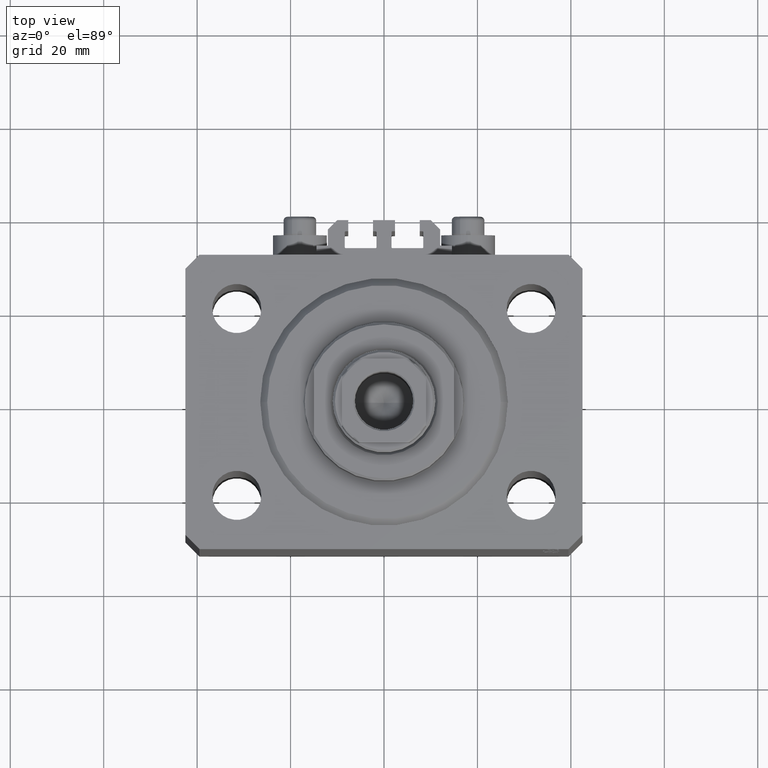
[diagram: clean part render]
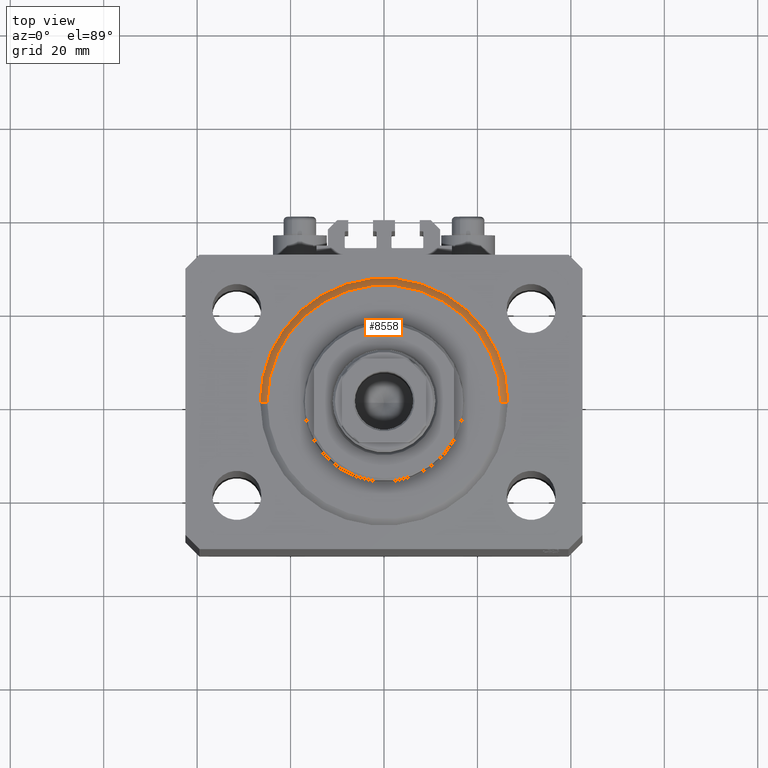
[diagram: same view with one face highlighted and labeled with its STEP entity id]
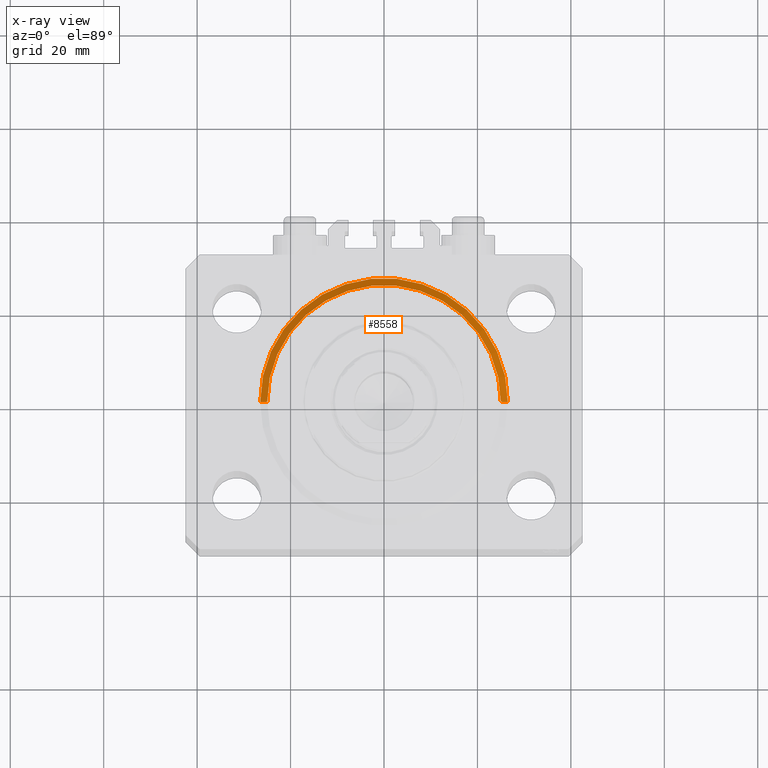
[diagram: x-ray of the same camera — body ghosted, the highlighted face saturated]
A machine part, top view. The second image highlights one B-rep face of the part: STEP entity #8558.
The next image is the same camera in x-ray: the body ghosted, the highlighted face saturated — about 0% of this face is hidden behind the body in this view.
In plain terms, the highlighted conical surface has half-angle 45 deg.
Its self-contained STEP definition (entity closure, byte-faithful):
#3386 = DIRECTION ( 'NONE',  ( 1.000000000000000000, 0.000000000000000000, 0.000000000000000000 ) ) ;
#6912 = CARTESIAN_POINT ( 'NONE',  ( 24.99999999999998224, 0.000000000000000000, 0.000000000000000000 ) ) ;
#7739 = CARTESIAN_POINT ( 'NONE',  ( 26.50000000000000355, 0.000000000000000000, 1.500000000000018652 ) ) ;
#8211 = LINE ( 'NONE', #7739, #44313 ) ;
#8558 = ADVANCED_FACE ( 'NONE', ( #14595 ), #10097, .T. ) ;
#9539 = DIRECTION ( 'NONE',  ( -0.000000000000000000, -0.000000000000000000, -1.000000000000000000 ) ) ;
#10097 = CONICAL_SURFACE ( 'NONE', #31476, 26.50000000000000355, 0.7853981633974495002 ) ;
#10298 = CARTESIAN_POINT ( 'NONE',  ( 0.000000000000000000, 0.000000000000000000, 1.500000000000018652 ) ) ;
#10592 = VERTEX_POINT ( 'NONE', #17755 ) ;
#11850 = DIRECTION ( 'NONE',  ( -0.7071067811865483499, 8.659560562354942719E-17, 0.7071067811865466846 ) ) ;
#14595 = FACE_OUTER_BOUND ( 'NONE', #36623, .T. ) ;
#14981 = VERTEX_POINT ( 'NONE', #28969 ) ;
#17710 = VERTEX_POINT ( 'NONE', #34410 ) ;
#17755 = CARTESIAN_POINT ( 'NONE',  ( -26.50000000000000355, 0.000000000000000000, 1.500000000000018652 ) ) ;
#18171 = ORIENTED_EDGE ( 'NONE', *, *, #45099, .F. ) ;
#19384 = AXIS2_PLACEMENT_3D ( 'NONE', #42255, #9539, #35075 ) ;
#22422 = CIRCLE ( 'NONE', #19384, 24.99999999999998224 ) ;
#23674 = EDGE_CURVE ( 'NONE', #14981, #10592, #28157, .T. ) ;
#25667 = CARTESIAN_POINT ( 'NONE',  ( 0.000000000000000000, 0.000000000000000000, 1.500000000000018652 ) ) ;
#27539 = ORIENTED_EDGE ( 'NONE', *, *, #45615, .T. ) ;
#27762 = VECTOR ( 'NONE', #11850, 1000.000000000000000 ) ;
#28157 = CIRCLE ( 'NONE', #31224, 26.50000000000000355 ) ;
#28969 = CARTESIAN_POINT ( 'NONE',  ( 26.50000000000000355, 3.245314017740486554E-15, 1.500000000000018652 ) ) ;
#29531 = VERTEX_POINT ( 'NONE', #6912 ) ;
#29688 = DIRECTION ( 'NONE',  ( 0.7071067811865483499, 0.000000000000000000, 0.7071067811865466846 ) ) ;
#31224 = AXIS2_PLACEMENT_3D ( 'NONE', #25667, #37358, #47150 ) ;
#31476 = AXIS2_PLACEMENT_3D ( 'NONE', #10298, #39434, #3386 ) ;
#34410 = CARTESIAN_POINT ( 'NONE',  ( -24.99999999999998224, 3.153465507804433615E-15, 0.000000000000000000 ) ) ;
#35075 = DIRECTION ( 'NONE',  ( 1.000000000000000000, 0.000000000000000000, 0.000000000000000000 ) ) ;
#36623 = EDGE_LOOP ( 'NONE', ( #18171, #27539, #42607, #42107 ) ) ;
#37161 = LINE ( 'NONE', #44576, #27762 ) ;
#37266 = EDGE_CURVE ( 'NONE', #29531, #14981, #8211, .T. ) ;
#37358 = DIRECTION ( 'NONE',  ( -0.000000000000000000, -0.000000000000000000, 1.000000000000000000 ) ) ;
#39434 = DIRECTION ( 'NONE',  ( -0.000000000000000000, -0.000000000000000000, 1.000000000000000000 ) ) ;
#42107 = ORIENTED_EDGE ( 'NONE', *, *, #37266, .F. ) ;
#42255 = CARTESIAN_POINT ( 'NONE',  ( 0.000000000000000000, 0.000000000000000000, 0.000000000000000000 ) ) ;
#42607 = ORIENTED_EDGE ( 'NONE', *, *, #23674, .F. ) ;
#44313 = VECTOR ( 'NONE', #29688, 1000.000000000000000 ) ;
#44576 = CARTESIAN_POINT ( 'NONE',  ( -26.50000000000000355, 3.245314017740486554E-15, 1.500000000000018652 ) ) ;
#45099 = EDGE_CURVE ( 'NONE', #17710, #29531, #22422, .T. ) ;
#45615 = EDGE_CURVE ( 'NONE', #17710, #10592, #37161, .T. ) ;
#47150 = DIRECTION ( 'NONE',  ( 1.000000000000000000, 0.000000000000000000, 0.000000000000000000 ) ) ;